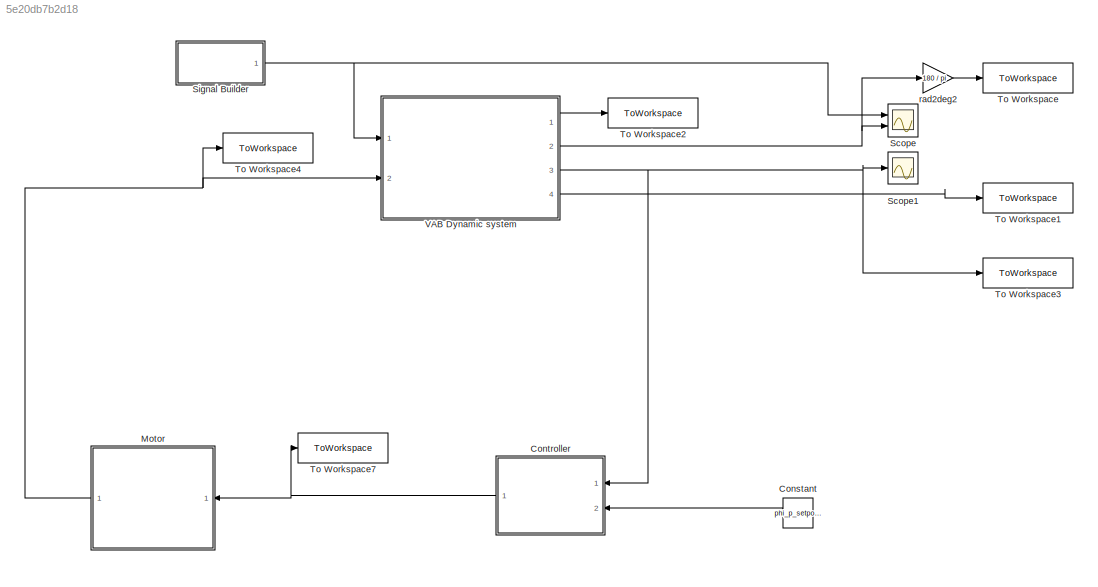
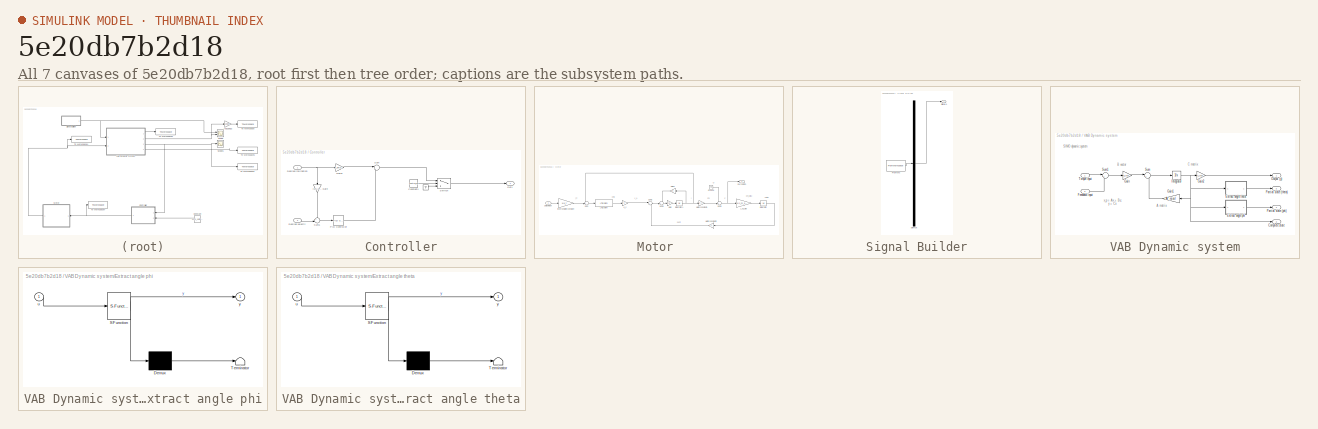
[diagram: thumbnail index - all 7 canvases of the model, root first then tree order]
MODEL slx_5e20db7b2d18
KIND model
CONFIG AbsTol = auto
CONFIG EnableMultiTasking = off
CONFIG FixedStep = Ts
CONFIG MaxStep = auto
CONFIG MinStep = auto
CONFIG RelTol = 1e-3
CONFIG SampleTimeConstraint = Unconstrained
CONFIG Solver = VariableStepAuto
CONFIG SolverName = VariableStepAuto
CONFIG StartTime = 0.0
CONFIG StopTime = t_end
BLOCK [Constant] Constant
  Value = phi_p_setpoint
BLOCK [SubSystem] Controller
  Ports = [2, 1]
  RequestExecContextInheritance = off
BLOCK [Ground] Controller/ 
BLOCK [Constant] Controller/Constant1
  Value = control_on
BLOCK [Inport] Controller/Desired inclination
  IconDisplay = Port number
BLOCK [Inport] Controller/Desired velocity 
  IconDisplay = Port number
  Port = 2
BLOCK [Gain] Controller/Gain
  Gain = [0,1,0,0]
  Multiplication = Matrix(K*u)
  OutDataTypeStr = Inherit: Inherit via internal rule
  ParamDataTypeStr = Inherit: Inherit via internal rule
  SaturateOnIntegerOverflow = off
BLOCK [Gain] Controller/Gain1
  Gain = k_simulazione_continua
  Multiplication = Matrix(K*u)
  OutDataTypeStr = Inherit: Inherit via internal rule
  ParamDataTypeStr = Inherit: Inherit via internal rule
  SaturateOnIntegerOverflow = off
BLOCK [Outport] Controller/Out1
  IconDisplay = Port number
BLOCK [Reference] Controller/PID Controller  REF=simulink/Continuous/PID Controller
  Ports = [1, 1]
  SourceBlock = simulink/Continuous/PID Controller
  SourceProductBaseCode = SL
  SourceProductName = Simulink
  SourceType = PID 1dof
BLOCK [Sum] Controller/Sum
  IconShape = round
  InputSameDT = off
  Inputs = |-+
  OutDataTypeStr = Inherit: Inherit via internal rule
  Ports = [2, 1]
  SaturateOnIntegerOverflow = off
BLOCK [Sum] Controller/Sum1
  IconShape = round
  InputSameDT = off
  Inputs = +-|
  OutDataTypeStr = Inherit: Inherit via internal rule
  Ports = [2, 1]
  SaturateOnIntegerOverflow = off
BLOCK [Switch] Controller/Switch
  Criteria = u2 > Threshold
  InputSameDT = off
  SaturateOnIntegerOverflow = off
  Threshold = 0.5
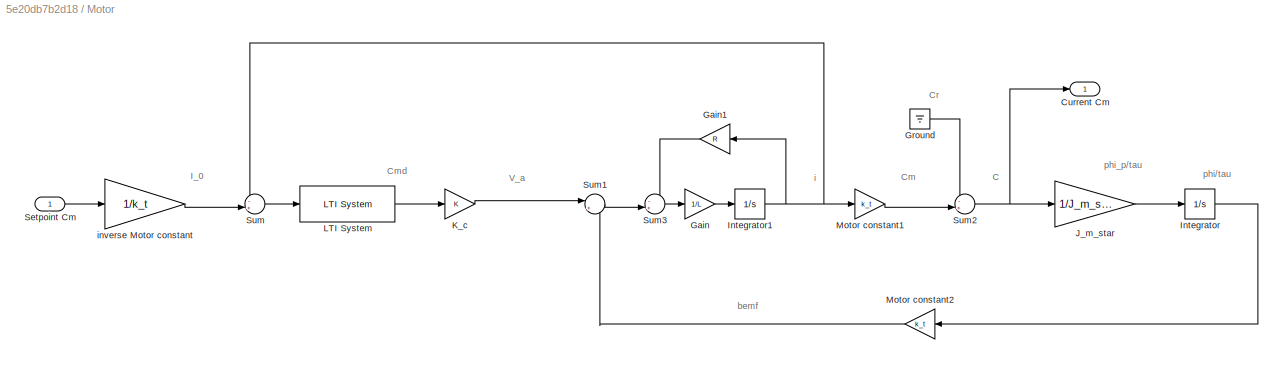
BLOCK [SubSystem] Motor 
  Ports = [1, 1]
  RequestExecContextInheritance = off
BLOCK [Outport] Motor /Current Cm 
  IconDisplay = Port number
BLOCK [Gain] Motor /Gain
  Gain = 1/L
  OutDataTypeStr = Inherit: Inherit via internal rule
  ParamDataTypeStr = Inherit: Inherit via internal rule
  SaturateOnIntegerOverflow = off
BLOCK [Gain] Motor /Gain1
  Gain = R
  OutDataTypeStr = Inherit: Inherit via internal rule
  ParamDataTypeStr = Inherit: Inherit via internal rule
  SaturateOnIntegerOverflow = off
BLOCK [Ground] Motor /Ground
BLOCK [Integrator] Motor /Integrator
  Ports = [1, 1]
BLOCK [Integrator] Motor /Integrator1
  Ports = [1, 1]
BLOCK [Gain] Motor /J_m_star 
  Gain = 1/J_m_star
  OutDataTypeStr = Inherit: Inherit via internal rule
  ParamDataTypeStr = Inherit: Inherit via internal rule
  SaturateOnIntegerOverflow = off
BLOCK [Gain] Motor /K_c
  OutDataTypeStr = Inherit: Inherit via internal rule
  ParamDataTypeStr = Inherit: Inherit via internal rule
  SaturateOnIntegerOverflow = off
BLOCK [Reference] Motor /LTI System  REF=cstblocks/LTI System
  Ports = [1, 1]
  SourceBlock = cstblocks/LTI System
  SourceProductBaseCode = CT
  SourceProductName = Control System Toolbox
  SourceType = LTI Block
BLOCK [Gain] Motor /Motor constant1
  Gain = k_t
  OutDataTypeStr = Inherit: Inherit via internal rule
  ParamDataTypeStr = Inherit: Inherit via internal rule
  SaturateOnIntegerOverflow = off
BLOCK [Gain] Motor /Motor constant2
  Gain = k_t
  OutDataTypeStr = Inherit: Inherit via internal rule
  ParamDataTypeStr = Inherit: Inherit via internal rule
  SaturateOnIntegerOverflow = off
BLOCK [Inport] Motor /Setpoint Cm
  IconDisplay = Port number
BLOCK [Sum] Motor /Sum
  IconShape = round
  InputSameDT = off
  Inputs = -+|
  OutDataTypeStr = Inherit: Inherit via internal rule
  Ports = [2, 1]
  SaturateOnIntegerOverflow = off
BLOCK [Sum] Motor /Sum1
  IconShape = round
  InputSameDT = off
  Inputs = |+-
  OutDataTypeStr = Inherit: Inherit via internal rule
  Ports = [2, 1]
  SaturateOnIntegerOverflow = off
BLOCK [Sum] Motor /Sum2
  IconShape = round
  InputSameDT = off
  Inputs = -+|
  OutDataTypeStr = Inherit: Inherit via internal rule
  Ports = [2, 1]
  SaturateOnIntegerOverflow = off
BLOCK [Sum] Motor /Sum3
  IconShape = round
  InputSameDT = off
  Inputs = -+|
  OutDataTypeStr = Inherit: Inherit via internal rule
  Ports = [2, 1]
  SaturateOnIntegerOverflow = off
BLOCK [Gain] Motor /inverse Motor constant
  Gain = 1/k_t
  OutDataTypeStr = Inherit: Inherit via internal rule
  ParamDataTypeStr = Inherit: Inherit via internal rule
  SaturateOnIntegerOverflow = off
BLOCK [Scope] Scope
  Commented = on
  Floating = off
  NumInputPorts = 2
  Ports = [2]
  ScopeSpecificationString = Simulink.scopes.TimeScopeBlockCfg('CurrentConfiguration', extmgr.ConfigurationSet(extmgr.Configuration('Core','General UI',true),extmgr.Configuration('Core','Source UI',true),extmgr.Configuration('Sources','WiredSimulink',true),extmgr.Configuration('Visuals','Time Domain',true,'SerializedDisplays',{struct('MinYLimReal','-44.73919','MaxYLimReal','361.30559','YLabelReal','','MinYLimMag','0.00000','M...<+1414ch>
BLOCK [Scope] Scope1
  Commented = on
  Floating = off
  NumInputPorts = 1
  Ports = [1]
  ScopeSpecificationString = Simulink.scopes.TimeScopeBlockCfg('CurrentConfiguration', extmgr.ConfigurationSet(extmgr.Configuration('Core','General UI',true),extmgr.Configuration('Core','Source UI',true),extmgr.Configuration('Sources','WiredSimulink',true,'DataLoggingVariableName','ScopeData1'),extmgr.Configuration('Visuals','Time Domain',true,'SerializedDisplays',{struct('MinYLimReal','-11.24621','MaxYLimReal','13.10501','YL...<+1489ch>
BLOCK [SubSystem] Signal Builder
  ClipboardFcn = sigbuilder_block('clipboard');
  CloseFcn = sigbuilder_block('close');
  Commented = on
  ContinueFcn = sigbuilder_block('continue');
  CopyFcn = sigbuilder_block('copy');
  DeleteFcn = sigbuilder_block('delete');
  LoadFcn = sigbuilder_block('load');
  MaskHideContents = on
  ModelCloseFcn = sigbuilder_block('modelClose');
  NameChangeFcn = sigbuilder_block('namechange');
  OpenFcn = sigbuilder_block('open',[6 6 1012.5 506.25 ]);
  PauseFcn = sigbuilder_block('pause');
  Ports = [0, 1]
  PreSaveFcn = sigbuilder_block('preSave');
  RequestExecContextInheritance = off
  StartFcn = sigbuilder_block('start');
  StopFcn = sigbuilder_block('stop');
  Tag = STV Subsys
BLOCK [Demux] Signal Builder/Demux
  Outputs = 1
  Ports = [1, 1]
  Tag = STV Demux
BLOCK [FromWorkspace] Signal Builder/FromWs
  SampleTime = 0
  Tag = STV FromWs
  VariableName = tuvar
  ZeroCross = on
BLOCK [Outport] Signal Builder/Signal 1
  IconDisplay = Port number
  Tag = STV Outport
BLOCK [ToWorkspace] To Workspace
  FixptAsFi = on
  MaxDataPoints = inf
  Ports = [1]
  SampleTime = -1
  VariableName = theta_Clamped
BLOCK [ToWorkspace] To Workspace1
  FixptAsFi = on
  MaxDataPoints = inf
  Ports = [1]
  SampleTime = -1
  VariableName = phi_Clamped
BLOCK [ToWorkspace] To Workspace2
  FixptAsFi = on
  MaxDataPoints = inf
  Ports = [1]
  SampleTime = -1
  VariableName = Output
BLOCK [ToWorkspace] To Workspace3
  FixptAsFi = on
  MaxDataPoints = inf
  Ports = [1]
  SampleTime = -1
  VariableName = completeState
BLOCK [ToWorkspace] To Workspace4
  FixptAsFi = on
  MaxDataPoints = inf
  Ports = [1]
  SampleTime = -1
  VariableName = actualTorque
BLOCK [ToWorkspace] To Workspace7
  FixptAsFi = on
  MaxDataPoints = inf
  Ports = [1]
  SampleTime = -1
  VariableName = torqueRequested
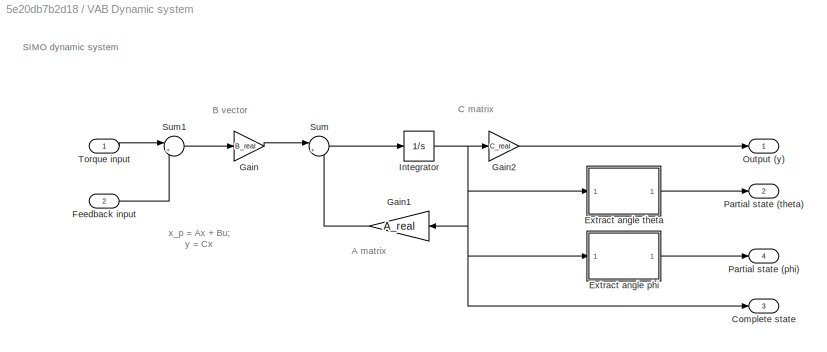
BLOCK [SubSystem] VAB Dynamic system
  Ports = [2, 4]
  RequestExecContextInheritance = off
BLOCK [Outport] VAB Dynamic system/Complete state 
  IconDisplay = Port number
  Port = 3
BLOCK [SubSystem] VAB Dynamic system/Extract angle phi
  ErrorFcn = Stateflow.Translate.translate
  PermitHierarchicalResolution = ExplicitOnly
  Ports = [1, 1]
  RequestExecContextInheritance = off
  SFBlockType = MATLAB Function
  TreatAsAtomicUnit = on
BLOCK [Demux] VAB Dynamic system/Extract angle phi/ Demux 
  Outputs = 1
  Ports = [1, 1]
BLOCK [S-Function] VAB Dynamic system/Extract angle phi/ SFunction 
  EnableBusSupport = on
  FunctionName = sf_sfun
  PortCounts = [1 2]
  Ports = [1, 2]
  SFcnIsStateOwnerBlock = off
  SFunctionDeploymentMode = off
  Tag = Stateflow S-Function 1
BLOCK [Terminator] VAB Dynamic system/Extract angle phi/ Terminator 
BLOCK [Inport] VAB Dynamic system/Extract angle phi/u
  IconDisplay = Port number
BLOCK [Outport] VAB Dynamic system/Extract angle phi/y
  IconDisplay = Port number
BLOCK [SubSystem] VAB Dynamic system/Extract angle theta
  ErrorFcn = Stateflow.Translate.translate
  PermitHierarchicalResolution = ExplicitOnly
  Ports = [1, 1]
  RequestExecContextInheritance = off
  SFBlockType = MATLAB Function
  TreatAsAtomicUnit = on
BLOCK [Demux] VAB Dynamic system/Extract angle theta/ Demux 
  Outputs = 1
  Ports = [1, 1]
BLOCK [S-Function] VAB Dynamic system/Extract angle theta/ SFunction 
  EnableBusSupport = on
  FunctionName = sf_sfun
  PortCounts = [1 2]
  Ports = [1, 2]
  SFcnIsStateOwnerBlock = off
  SFunctionDeploymentMode = off
  Tag = Stateflow S-Function 2
BLOCK [Terminator] VAB Dynamic system/Extract angle theta/ Terminator 
BLOCK [Inport] VAB Dynamic system/Extract angle theta/u
  IconDisplay = Port number
BLOCK [Outport] VAB Dynamic system/Extract angle theta/y
  IconDisplay = Port number
BLOCK [Inport] VAB Dynamic system/Feedback input
  IconDisplay = Port number
  Port = 2
BLOCK [Gain] VAB Dynamic system/Gain
  Gain = B_real
  Multiplication = Matrix(K*u) (u vector)
  OutDataTypeStr = Inherit: Inherit via internal rule
  ParamDataTypeStr = Inherit: Inherit via internal rule
  SaturateOnIntegerOverflow = off
BLOCK [Gain] VAB Dynamic system/Gain1
  Gain = A_real
  Multiplication = Matrix(K*u) (u vector)
  OutDataTypeStr = Inherit: Inherit via internal rule
  ParamDataTypeStr = Inherit: Inherit via internal rule
  SaturateOnIntegerOverflow = off
BLOCK [Gain] VAB Dynamic system/Gain2
  Gain = C_real
  Multiplication = Matrix(K*u) (u vector)
  OutDataTypeStr = Inherit: Inherit via internal rule
  ParamDataTypeStr = Inherit: Inherit via internal rule
  SaturateOnIntegerOverflow = off
BLOCK [Integrator] VAB Dynamic system/Integrator
  InitialCondition = x_0
  Ports = [1, 1]
BLOCK [Outport] VAB Dynamic system/Output (y)
  IconDisplay = Port number
BLOCK [Outport] VAB Dynamic system/Partial state (phi)
  IconDisplay = Port number
  Port = 4
BLOCK [Outport] VAB Dynamic system/Partial state (theta)
  IconDisplay = Port number
  Port = 2
BLOCK [Sum] VAB Dynamic system/Sum
  IconShape = round
  InputSameDT = off
  Inputs = |++
  OutDataTypeStr = Inherit: Inherit via internal rule
  Ports = [2, 1]
  SaturateOnIntegerOverflow = off
BLOCK [Sum] VAB Dynamic system/Sum1
  IconShape = round
  InputSameDT = off
  Inputs = |++
  OutDataTypeStr = Inherit: Inherit via internal rule
  Ports = [2, 1]
  SaturateOnIntegerOverflow = off
BLOCK [Inport] VAB Dynamic system/Torque input
  IconDisplay = Port number
BLOCK [Gain] rad2deg2
  Gain = 180 / pi
  OutDataTypeStr = Inherit: Inherit via internal rule
  ParamDataTypeStr = Inherit: Inherit via internal rule
  SaturateOnIntegerOverflow = off
ANNOTATION Motor : C
ANNOTATION Motor : Cm
ANNOTATION Motor : Cmd
ANNOTATION Motor : Cr
ANNOTATION Motor : I_0
ANNOTATION Motor : V_a
ANNOTATION Motor : bemf
ANNOTATION Motor : i
ANNOTATION Motor : phi/tau
ANNOTATION Motor : phi_p/tau
ANNOTATION VAB Dynamic system: SIMO dynamic system
ANNOTATION VAB Dynamic system: A matrix
ANNOTATION VAB Dynamic system: B vector
ANNOTATION VAB Dynamic system: C matrix
ANNOTATION VAB Dynamic system: x_p = Ax + Bu; y = Cx
LINE Constant:1 -> Controller:2
LINE Controller/ :1 -> Controller/Switch:3
LINE Controller/Constant1:1 -> Controller/Switch:2
NET Controller/Desired inclination:1 -> Controller/Gain1:1, Controller/Gain:1
LINE Controller/Desired velocity :1 -> Controller/Sum1:2
LINE Controller/Gain1:1 -> Controller/Sum:1
LINE Controller/Gain:1 -> Controller/Sum1:1
LINE Controller/PID Controller:1 -> Controller/Sum:2
LINE Controller/Sum1:1 -> Controller/PID Controller:1
LINE Controller/Sum:1 -> Controller/Switch:1
LINE Controller/Switch:1 -> Controller/Out1:1
NET Controller:1 -> Motor :1, To Workspace7:1
LINE Motor /Gain1:1 -> Motor /Sum3:1
LINE Motor /Gain:1 -> Motor /Integrator1:1
LINE Motor /Ground:1 -> Motor /Sum2:1
NET Motor /Integrator1:1 -> Motor /Gain1:1, Motor /Motor constant1:1, Motor /Sum:1
LINE Motor /Integrator:1 -> Motor /Motor constant2:1
LINE Motor /J_m_star :1 -> Motor /Integrator:1
LINE Motor /K_c:1 -> Motor /Sum1:1
LINE Motor /LTI System:1 -> Motor /K_c:1
LINE Motor /Motor constant1:1 -> Motor /Sum2:2
LINE Motor /Motor constant2:1 -> Motor /Sum1:2
LINE Motor /Setpoint Cm:1 -> Motor /inverse Motor constant:1
LINE Motor /Sum1:1 -> Motor /Sum3:2
NET Motor /Sum2:1 -> Motor /Current Cm :1, Motor /J_m_star :1
LINE Motor /Sum3:1 -> Motor /Gain:1
LINE Motor /Sum:1 -> Motor /LTI System:1
LINE Motor /inverse Motor constant:1 -> Motor /Sum:2
NET Motor :1 -> To Workspace4:1, VAB Dynamic system:2
NET Signal Builder:1 -> Scope:1, VAB Dynamic system:1
LINE VAB Dynamic system/Extract angle phi:1 -> VAB Dynamic system/Partial state (phi):1
LINE VAB Dynamic system/Extract angle theta:1 -> VAB Dynamic system/Partial state (theta):1
LINE VAB Dynamic system/Feedback input:1 -> VAB Dynamic system/Sum1:2
LINE VAB Dynamic system/Gain1:1 -> VAB Dynamic system/Sum:2
LINE VAB Dynamic system/Gain2:1 -> VAB Dynamic system/Output (y):1
LINE VAB Dynamic system/Gain:1 -> VAB Dynamic system/Sum:1
NET VAB Dynamic system/Integrator:1 -> VAB Dynamic system/Complete state :1, VAB Dynamic system/Extract angle phi:1, VAB Dynamic system/Extract angle theta:1, VAB Dynamic system/Gain1:1, VAB Dynamic system/Gain2:1
LINE VAB Dynamic system/Sum1:1 -> VAB Dynamic system/Gain:1
LINE VAB Dynamic system/Sum:1 -> VAB Dynamic system/Integrator:1
LINE VAB Dynamic system/Torque input:1 -> VAB Dynamic system/Sum1:1
LINE VAB Dynamic system:1 -> To Workspace2:1
NET VAB Dynamic system:2 -> Scope:2, rad2deg2:1
NET VAB Dynamic system:3 -> Controller:1, Scope1:1, To Workspace3:1
LINE VAB Dynamic system:4 -> To Workspace1:1
LINE rad2deg2:1 -> To Workspace:1
note: NET lines group one-source signal fan-out (src -> all destinations, sorted); 1:1 wires keep LINE
CHART VAB Dynamic system/Extract angle phi states=1 transitions=1
  STATE_LABEL 'eML_blk_kernel()'
  STATE_LABEL 'SCRIPT:\nfunction y = fcn(u)\n\n% if u(1) ~= 0\n%    u(1) = mod(u(1), 2 * pi); \n% end\n% \n% y = rad2deg(u(1));\ny = u(1);\n'
CHART VAB Dynamic system/Extract angle theta states=1 transitions=1
  STATE_LABEL 'eML_blk_kernel()'
  STATE_LABEL 'SCRIPT:\nfunction y = fcn(u)\n\n% if u(3) ~= 0\n%    u(3) = mod(u(3), 2 * pi); \n% end\n% \n% \n% y = rad2deg(u(3));\ny = u(3);\n'
